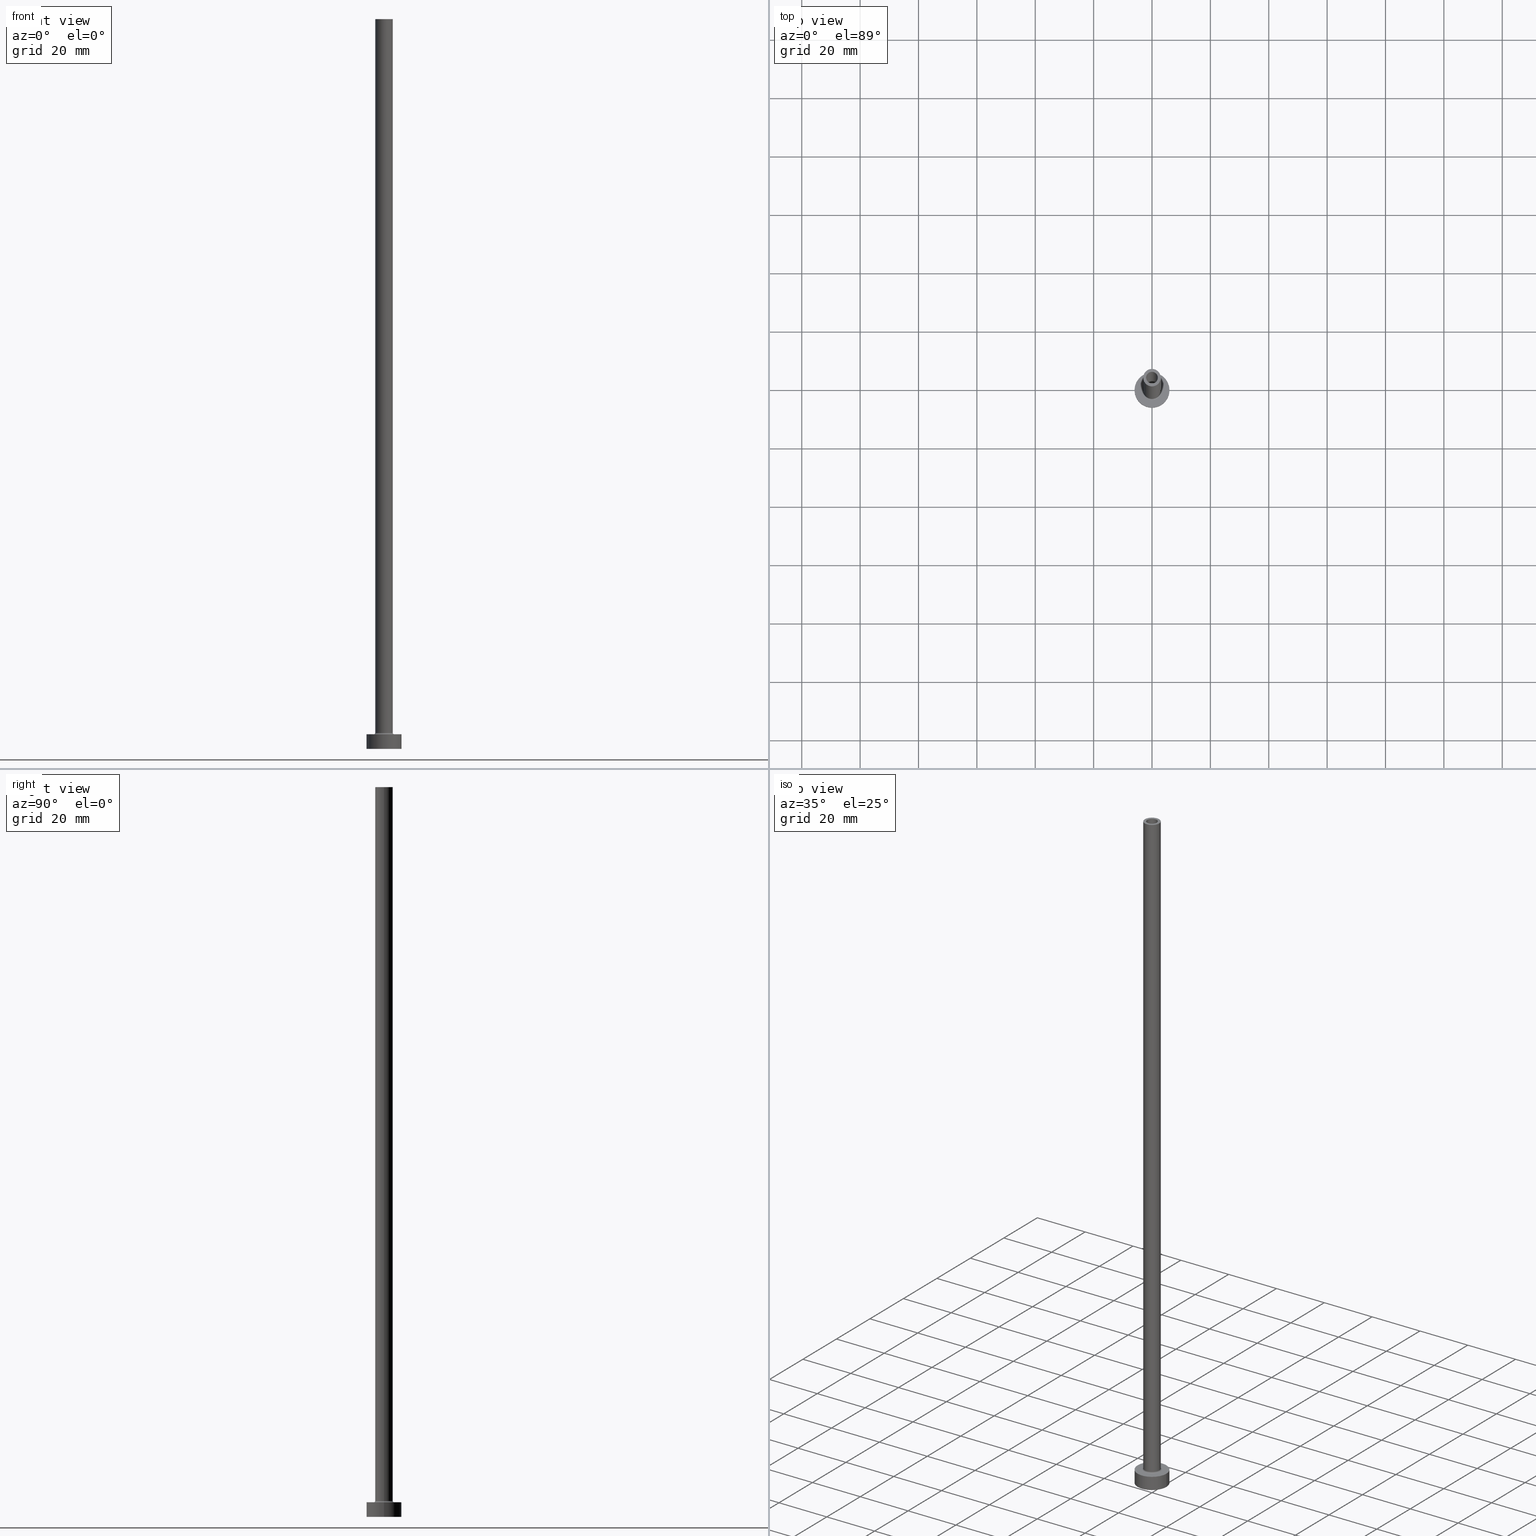
[diagram: canonical four-view strip — front | top / right | iso, engineering-drawing reading convention]
A machine part, canonical four-view strip (front | top / right | iso — engineering-drawing reading convention). The complete STEP part file that produces these views, byte-faithful:
ISO-10303-21;
HEADER;
FILE_DESCRIPTION (( 'STEP AP203' ),
    '1' );
FILE_NAME ('80ba.STEP',
    '2023-02-13T17:44:59',
    ( '' ),
    ( '' ),
    'SwSTEP 2.0',
    'SolidWorks 2019',
    '' );
FILE_SCHEMA (( 'CONFIG_CONTROL_DESIGN' ));
ENDSEC;

DATA;
#1 = CARTESIAN_POINT ( 'NONE',  ( 6.000000000000000888, 7.347880794884120722E-16, 5.000000000000000000 ) ) ;
#2 = EDGE_CURVE ( 'NONE', #150, #3, #417, .T. ) ;
#3 = VERTEX_POINT ( 'NONE', #58 ) ;
#4 = COORDINATED_UNIVERSAL_TIME_OFFSET ( 1, 0, .AHEAD. ) ;
#5 = CARTESIAN_POINT ( 'NONE',  ( 0.000000000000000000, 0.000000000000000000, 5.000000000000000000 ) ) ;
#6 = ORIENTED_EDGE ( 'NONE', *, *, #258, .F. ) ;
#7 = ORIENTED_EDGE ( 'NONE', *, *, #321, .F. ) ;
#8 = PRODUCT_DEFINITION_SHAPE ( 'NONE', 'NONE',  #207 ) ;
#9 = ORIENTED_EDGE ( 'NONE', *, *, #325, .F. ) ;
#10 = EDGE_CURVE ( 'NONE', #300, #332, #76, .T. ) ;
#11 = VECTOR ( 'NONE', #131, 1000.000000000000000 ) ;
#12 = CC_DESIGN_APPROVAL ( #293, ( #207 ) ) ;
#13 = CARTESIAN_POINT ( 'NONE',  ( 0.000000000000000000, 0.000000000000000000, 5.000000000000000000 ) ) ;
#14 = VERTEX_POINT ( 'NONE', #276 ) ;
#15 = DIRECTION ( 'NONE',  ( 0.000000000000000000, 0.000000000000000000, 1.000000000000000000 ) ) ;
#16 = ORIENTED_EDGE ( 'NONE', *, *, #325, .T. ) ;
#17 = ADVANCED_FACE ( 'NONE', ( #137, #306 ), #26, .T. ) ;
#18 = ORIENTED_EDGE ( 'NONE', *, *, #246, .T. ) ;
#19 = DIRECTION ( 'NONE',  ( 1.000000000000000000, 0.000000000000000000, 0.000000000000000000 ) ) ;
#20 = AXIS2_PLACEMENT_3D ( 'NONE', #144, #287, #438 ) ;
#21 = VERTEX_POINT ( 'NONE', #418 ) ;
#22 = DIRECTION ( 'NONE',  ( 0.000000000000000000, 0.000000000000000000, 1.000000000000000000 ) ) ;
#23 = DIRECTION ( 'NONE',  ( 0.000000000000000000, 0.000000000000000000, 1.000000000000000000 ) ) ;
#24 = ADVANCED_FACE ( 'NONE', ( #93 ), #90, .F. ) ;
#25 = CARTESIAN_POINT ( 'NONE',  ( 0.000000000000000000, 0.000000000000000000, 0.000000000000000000 ) ) ;
#26 = PLANE ( 'NONE',  #366 ) ;
#27 = ORIENTED_EDGE ( 'NONE', *, *, #242, .T. ) ;
#28 = APPLICATION_PROTOCOL_DEFINITION ( 'international standard', 'config_control_design', 1994, #299 ) ;
#29 = ADVANCED_FACE ( 'NONE', ( #171, #234 ), #308, .F. ) ;
#30 = PERSON_AND_ORGANIZATION ( #39, #167 ) ;
#31 = UNCERTAINTY_MEASURE_WITH_UNIT (LENGTH_MEASURE( 1.000000000000000082E-05 ), #243, 'distance_accuracy_value', 'NONE');
#32 = ORIENTED_EDGE ( 'NONE', *, *, #2, .F. ) ;
#33 = DATE_AND_TIME ( #136, #397 ) ;
#34 = CIRCLE ( 'NONE', #53, 6.000000000000000888 ) ;
#35 = APPROVAL_PERSON_ORGANIZATION ( #343, #293, #139 ) ;
#36 = DIRECTION ( 'NONE',  ( 0.000000000000000000, 0.000000000000000000, 1.000000000000000000 ) ) ;
#37 = EDGE_CURVE ( 'NONE', #356, #254, #405, .T. ) ;
#38 = DIRECTION ( 'NONE',  ( -1.000000000000000000, 0.000000000000000000, 0.000000000000000000 ) ) ;
#39 = PERSON ( 'NEUR�EN�', 'NEUR�EN�', 'NEUR�EN�', ('NEUR�EN�'), ('NEUR�EN�'), ('NEUR�EN�') ) ;
#40 = DIRECTION ( 'NONE',  ( 0.000000000000000000, 0.000000000000000000, 1.000000000000000000 ) ) ;
#41 = EDGE_LOOP ( 'NONE', ( #186, #32 ) ) ;
#42 = ORIENTED_EDGE ( 'NONE', *, *, #10, .F. ) ;
#43 = ADVANCED_FACE ( 'NONE', ( #341 ), #342, .T. ) ;
#44 = DIRECTION ( 'NONE',  ( 0.000000000000000000, 0.000000000000000000, -1.000000000000000000 ) ) ;
#45 = VERTEX_POINT ( 'NONE', #64 ) ;
#46 = DIRECTION ( 'NONE',  ( -0.000000000000000000, -0.000000000000000000, -1.000000000000000000 ) ) ;
#47 = ADVANCED_FACE ( 'NONE', ( #166 ), #377, .F. ) ;
#48 = FACE_OUTER_BOUND ( 'NONE', #71, .T. ) ;
#49 = ORIENTED_EDGE ( 'NONE', *, *, #315, .F. ) ;
#50 = CARTESIAN_POINT ( 'NONE',  ( 0.000000000000000000, 0.000000000000000000, 250.0000000000000000 ) ) ;
#51 = AXIS2_PLACEMENT_3D ( 'NONE', #367, #271, #133 ) ;
#52 = DIRECTION ( 'NONE',  ( -0.000000000000000000, -0.000000000000000000, -1.000000000000000000 ) ) ;
#53 = AXIS2_PLACEMENT_3D ( 'NONE', #263, #372, #260 ) ;
#54 = ADVANCED_FACE ( 'NONE', ( #173 ), #456, .T. ) ;
#55 = DIRECTION ( 'NONE',  ( 0.000000000000000000, 0.000000000000000000, -1.000000000000000000 ) ) ;
#56 = DIRECTION ( 'NONE',  ( 0.000000000000000000, 0.000000000000000000, 1.000000000000000000 ) ) ;
#57 = FACE_OUTER_BOUND ( 'NONE', #402, .T. ) ;
#58 = CARTESIAN_POINT ( 'NONE',  ( -2.149999999999999911, 0.000000000000000000, 205.0000000000000284 ) ) ;
#59 = VECTOR ( 'NONE', #89, 1000.000000000000000 ) ;
#60 = ADVANCED_FACE ( 'NONE', ( #163, #106 ), #222, .T. ) ;
#61 = DIRECTION ( 'NONE',  ( -1.000000000000000000, 0.000000000000000000, 0.000000000000000000 ) ) ;
#62 = PERSON_AND_ORGANIZATION_ROLE ( 'design_owner' ) ;
#63 = PERSON_AND_ORGANIZATION ( #39, #167 ) ;
#64 = CARTESIAN_POINT ( 'NONE',  ( -3.500000000000000444, 4.286263797015737088E-16, 5.000000000000002665 ) ) ;
#65 = APPROVAL_STATUS ( 'not_yet_approved' ) ;
#66 = AXIS2_PLACEMENT_3D ( 'NONE', #324, #256, #396 ) ;
#67 = LOCAL_TIME ( 18, 44, 59.00000000000000000, #4 ) ;
#68 = DIRECTION ( 'NONE',  ( 0.000000000000000000, -1.000000000000000000, 0.000000000000000000 ) ) ;
#69 = EDGE_CURVE ( 'NONE', #300, #266, #124, .T. ) ;
#70 = DIRECTION ( 'NONE',  ( 1.000000000000000000, 0.000000000000000000, 0.000000000000000000 ) ) ;
#71 = EDGE_LOOP ( 'NONE', ( #432, #119, #423, #329 ) ) ;
#72 = ORIENTED_EDGE ( 'NONE', *, *, #225, .F. ) ;
#73 = VECTOR ( 'NONE', #425, 1000.000000000000000 ) ;
#74 = CIRCLE ( 'NONE', #99, 3.000000000000000444 ) ;
#75 = EDGE_CURVE ( 'NONE', #273, #21, #444, .T. ) ;
#76 = CIRCLE ( 'NONE', #440, 3.000000000000000444 ) ;
#77 = ORIENTED_EDGE ( 'NONE', *, *, #258, .T. ) ;
#78 = MANIFOLD_SOLID_BREP ( 'Odebrat vysunut�m4', #157 ) ;
#79 = EDGE_LOOP ( 'NONE', ( #447, #198 ) ) ;
#80 = CYLINDRICAL_SURFACE ( 'NONE', #66, 2.149999999999999911 ) ;
#81 = DIRECTION ( 'NONE',  ( 0.000000000000000000, 0.000000000000000000, 1.000000000000000000 ) ) ;
#82 = LINE ( 'NONE', #224, #354 ) ;
#83 = ORIENTED_EDGE ( 'NONE', *, *, #352, .F. ) ;
#84 = CARTESIAN_POINT ( 'NONE',  ( 0.000000000000000000, 0.000000000000000000, 5.000000000000000000 ) ) ;
#85 = ORIENTED_EDGE ( 'NONE', *, *, #120, .T. ) ;
#86 = DIRECTION ( 'NONE',  ( 0.000000000000000000, 0.000000000000000000, 1.000000000000000000 ) ) ;
#87 = ORIENTED_EDGE ( 'NONE', *, *, #75, .F. ) ;
#88 = CIRCLE ( 'NONE', #311, 6.000000000000000888 ) ;
#89 = DIRECTION ( 'NONE',  ( 0.000000000000000000, 0.000000000000000000, -1.000000000000000000 ) ) ;
#90 = CYLINDRICAL_SURFACE ( 'NONE', #238, 2.000000000000000000 ) ;
#91 = ORIENTED_EDGE ( 'NONE', *, *, #302, .F. ) ;
#92 = LINE ( 'NONE', #297, #457 ) ;
#93 = FACE_OUTER_BOUND ( 'NONE', #226, .T. ) ;
#94 = CARTESIAN_POINT ( 'NONE',  ( 2.149999999999999911, 2.632990618166809235E-16, 211.0811183182043180 ) ) ;
#95 = EDGE_CURVE ( 'NONE', #147, #239, #146, .T. ) ;
#96 = DIRECTION ( 'NONE',  ( 0.000000000000000000, 0.000000000000000000, -1.000000000000000000 ) ) ;
#97 = ORIENTED_EDGE ( 'NONE', *, *, #442, .F. ) ;
#98 = CIRCLE ( 'NONE', #116, 0.4999999999999995559 ) ;
#99 = AXIS2_PLACEMENT_3D ( 'NONE', #156, #262, #286 ) ;
#100 =( NAMED_UNIT ( * ) PLANE_ANGLE_UNIT ( ) SI_UNIT ( $, .RADIAN. ) );
#101 = VECTOR ( 'NONE', #460, 1000.000000000000000 ) ;
#102 = CARTESIAN_POINT ( 'NONE',  ( 0.000000000000000000, 0.000000000000000000, 0.000000000000000000 ) ) ;
#103 = PERSON_AND_ORGANIZATION_ROLE ( 'design_supplier' ) ;
#104 = DIRECTION ( 'NONE',  ( 0.000000000000000000, 0.000000000000000000, 1.000000000000000000 ) ) ;
#105 = ORIENTED_EDGE ( 'NONE', *, *, #148, .T. ) ;
#106 = FACE_OUTER_BOUND ( 'NONE', #79, .T. ) ;
#107 = ORIENTED_EDGE ( 'NONE', *, *, #442, .T. ) ;
#108 = LOCAL_TIME ( 18, 44, 59.00000000000000000, #237 ) ;
#109 = CARTESIAN_POINT ( 'NONE',  ( 3.000000000000000444, 3.673940397442060361E-16, 250.0000000000000000 ) ) ;
#110 = VERTEX_POINT ( 'NONE', #109 ) ;
#111 = ADVANCED_BREP_SHAPE_REPRESENTATION ( '80ba', ( #78, #359 ), #382 ) ;
#112 = CARTESIAN_POINT ( 'NONE',  ( 0.000000000000000000, 0.000000000000000000, 5.000000000000000000 ) ) ;
#113 = EDGE_LOOP ( 'NONE', ( #72, #42, #135, #428 ) ) ;
#114 = CC_DESIGN_PERSON_AND_ORGANIZATION_ASSIGNMENT ( #170, #307, ( #207 ) ) ;
#115 = EDGE_LOOP ( 'NONE', ( #91, #154, #129, #9 ) ) ;
#116 = AXIS2_PLACEMENT_3D ( 'NONE', #152, #178, #121 ) ;
#117 = ORIENTED_EDGE ( 'NONE', *, *, #321, .T. ) ;
#118 = CIRCLE ( 'NONE', #345, 3.500000000000000444 ) ;
#119 = ORIENTED_EDGE ( 'NONE', *, *, #225, .T. ) ;
#120 = EDGE_CURVE ( 'NONE', #388, #110, #331, .T. ) ;
#121 = DIRECTION ( 'NONE',  ( -1.000000000000000000, 1.224646799147354440E-16, 0.000000000000000000 ) ) ;
#122 = ORIENTED_EDGE ( 'NONE', *, *, #159, .T. ) ;
#123 = FACE_OUTER_BOUND ( 'NONE', #249, .T. ) ;
#124 = CIRCLE ( 'NONE', #433, 0.5000000000000004441 ) ;
#125 = CYLINDRICAL_SURFACE ( 'NONE', #322, 2.149999999999999911 ) ;
#126 = ORIENTED_EDGE ( 'NONE', *, *, #365, .F. ) ;
#127 = LINE ( 'NONE', #94, #455 ) ;
#128 = CC_DESIGN_PERSON_AND_ORGANIZATION_ASSIGNMENT ( #30, #172, ( #291 ) ) ;
#129 = ORIENTED_EDGE ( 'NONE', *, *, #181, .T. ) ;
#130 = CARTESIAN_POINT ( 'NONE',  ( -3.000000000000000444, 0.000000000000000000, 250.0000000000000000 ) ) ;
#131 = DIRECTION ( 'NONE',  ( -0.000000000000000000, -0.000000000000000000, -1.000000000000000000 ) ) ;
#132 = CARTESIAN_POINT ( 'NONE',  ( 0.000000000000000000, 0.000000000000000000, 250.0000000000000000 ) ) ;
#133 = DIRECTION ( 'NONE',  ( 1.000000000000000000, 0.000000000000000000, 0.000000000000000000 ) ) ;
#134 = CARTESIAN_POINT ( 'NONE',  ( 0.000000000000000000, 0.000000000000000000, 250.0000000000000000 ) ) ;
#135 = ORIENTED_EDGE ( 'NONE', *, *, #69, .T. ) ;
#136 = CALENDAR_DATE ( 2023, 13, 2 ) ;
#137 = FACE_BOUND ( 'NONE', #413, .T. ) ;
#138 = CIRCLE ( 'NONE', #240, 3.500000000000000444 ) ;
#139 = APPROVAL_ROLE ( '' ) ;
#140 = AXIS2_PLACEMENT_3D ( 'NONE', #221, #318, #357 ) ;
#141 = DIRECTION ( 'NONE',  ( -0.000000000000000000, -0.000000000000000000, -1.000000000000000000 ) ) ;
#142 = CC_DESIGN_PERSON_AND_ORGANIZATION_ASSIGNMENT ( #414, #103, ( #231 ) ) ;
#143 = CARTESIAN_POINT ( 'NONE',  ( 3.500000000000000444, 0.000000000000000000, 5.500000000000005329 ) ) ;
#144 = CARTESIAN_POINT ( 'NONE',  ( 0.000000000000000000, 0.000000000000000000, 0.000000000000000000 ) ) ;
#145 = DATE_AND_TIME ( #384, #441 ) ;
#146 = LINE ( 'NONE', #393, #73 ) ;
#147 = VERTEX_POINT ( 'NONE', #1 ) ;
#148 = EDGE_CURVE ( 'NONE', #21, #273, #368, .T. ) ;
#149 = ORIENTED_EDGE ( 'NONE', *, *, #165, .T. ) ;
#150 = VERTEX_POINT ( 'NONE', #381 ) ;
#151 = AXIS2_PLACEMENT_3D ( 'NONE', #25, #168, #298 ) ;
#152 = CARTESIAN_POINT ( 'NONE',  ( -3.500000000000000444, 4.286263797015737088E-16, 5.500000000000005329 ) ) ;
#153 = ADVANCED_FACE ( 'NONE', ( #294 ), #80, .F. ) ;
#154 = ORIENTED_EDGE ( 'NONE', *, *, #95, .T. ) ;
#155 = CARTESIAN_POINT ( 'NONE',  ( 0.000000000000000000, 0.000000000000000000, 205.0000000000000284 ) ) ;
#156 = CARTESIAN_POINT ( 'NONE',  ( 0.000000000000000000, 0.000000000000000000, 250.0000000000000000 ) ) ;
#157 = CLOSED_SHELL ( 'NONE', ( #373, #339, #436, #43, #54, #220, #60, #29, #213, #17, #47, #153, #275, #24 ) ) ;
#158 = CIRCLE ( 'NONE', #140, 2.149999999999999911 ) ;
#159 = EDGE_CURVE ( 'NONE', #266, #45, #138, .T. ) ;
#160 = CARTESIAN_POINT ( 'NONE',  ( 0.000000000000000000, 0.000000000000000000, 5.000000000000000000 ) ) ;
#161 = EDGE_LOOP ( 'NONE', ( #270, #105 ) ) ;
#162 = CARTESIAN_POINT ( 'NONE',  ( 0.000000000000000000, 0.000000000000000000, 0.000000000000000000 ) ) ;
#163 = FACE_BOUND ( 'NONE', #188, .T. ) ;
#164 = DIRECTION ( 'NONE',  ( 1.000000000000000000, 0.000000000000000000, -0.000000000000000000 ) ) ;
#165 = EDGE_CURVE ( 'NONE', #3, #150, #158, .T. ) ;
#166 = FACE_OUTER_BOUND ( 'NONE', #113, .T. ) ;
#167 = ORGANIZATION ( 'NEUR�EN�', 'NEUR�EN�', '' ) ;
#168 = DIRECTION ( 'NONE',  ( -0.000000000000000000, -0.000000000000000000, -1.000000000000000000 ) ) ;
#169 = EDGE_LOOP ( 'NONE', ( #85, #107 ) ) ;
#170 = PERSON_AND_ORGANIZATION ( #39, #167 ) ;
#171 = FACE_BOUND ( 'NONE', #399, .T. ) ;
#172 = PERSON_AND_ORGANIZATION_ROLE ( 'classification_officer' ) ;
#173 = FACE_OUTER_BOUND ( 'NONE', #115, .T. ) ;
#174 =( NAMED_UNIT ( * ) SI_UNIT ( $, .STERADIAN. ) SOLID_ANGLE_UNIT ( ) );
#175 = AXIS2_PLACEMENT_3D ( 'NONE', #292, #81, #244 ) ;
#176 = DIRECTION ( 'NONE',  ( 0.000000000000000000, 0.000000000000000000, 1.000000000000000000 ) ) ;
#177 = APPROVAL_ROLE ( '' ) ;
#178 = DIRECTION ( 'NONE',  ( 1.224646799147353207E-16, 1.000000000000000000, -0.000000000000000000 ) ) ;
#179 = DATE_AND_TIME ( #424, #265 ) ;
#180 = DIRECTION ( 'NONE',  ( 1.000000000000000000, 0.000000000000000000, 0.000000000000000000 ) ) ;
#181 = EDGE_CURVE ( 'NONE', #239, #14, #230, .T. ) ;
#182 = PRODUCT ( '80ba', '80ba', '', ( #375 ) ) ;
#183 = APPROVAL_DATE_TIME ( #392, #347 ) ;
#184 = AXIS2_PLACEMENT_3D ( 'NONE', #13, #176, #189 ) ;
#185 = ORIENTED_EDGE ( 'NONE', *, *, #242, .F. ) ;
#186 = ORIENTED_EDGE ( 'NONE', *, *, #165, .F. ) ;
#187 = DIRECTION ( 'NONE',  ( 0.000000000000000000, 0.000000000000000000, 1.000000000000000000 ) ) ;
#188 = EDGE_LOOP ( 'NONE', ( #122, #394 ) ) ;
#189 = DIRECTION ( 'NONE',  ( 1.000000000000000000, 0.000000000000000000, -0.000000000000000000 ) ) ;
#190 = CARTESIAN_POINT ( 'NONE',  ( -3.000000000000000444, 0.000000000000000000, 5.500000000000005329 ) ) ;
#191 = EDGE_LOOP ( 'NONE', ( #411, #245, #18, #117 ) ) ;
#192 = DIRECTION ( 'NONE',  ( 1.000000000000000000, 0.000000000000000000, 0.000000000000000000 ) ) ;
#193 = CIRCLE ( 'NONE', #419, 3.000000000000000444 ) ;
#194 = TOROIDAL_SURFACE ( 'NONE', #435, 3.500000000000000444, 0.5000000000000000000 ) ;
#195 = ORIENTED_EDGE ( 'NONE', *, *, #253, .T. ) ;
#196 = CIRCLE ( 'NONE', #51, 6.000000000000000888 ) ;
#197 = DIRECTION ( 'NONE',  ( -0.000000000000000000, -0.000000000000000000, -1.000000000000000000 ) ) ;
#198 = ORIENTED_EDGE ( 'NONE', *, *, #302, .T. ) ;
#199 = CARTESIAN_POINT ( 'NONE',  ( 2.149999999999999911, 2.632990618166809235E-16, 0.000000000000000000 ) ) ;
#200 = EDGE_LOOP ( 'NONE', ( #257, #126, #16, #404 ) ) ;
#201 = DIRECTION ( 'NONE',  ( 0.000000000000000000, 0.000000000000000000, -1.000000000000000000 ) ) ;
#202 = DIRECTION ( 'NONE',  ( 1.000000000000000000, 0.000000000000000000, 0.000000000000000000 ) ) ;
#203 = DIRECTION ( 'NONE',  ( 0.000000000000000000, 0.000000000000000000, 1.000000000000000000 ) ) ;
#204 = DIRECTION ( 'NONE',  ( 1.000000000000000000, 0.000000000000000000, 0.000000000000000000 ) ) ;
#205 = COORDINATED_UNIVERSAL_TIME_OFFSET ( 1, 0, .AHEAD. ) ;
#206 = DIRECTION ( 'NONE',  ( 1.000000000000000000, 0.000000000000000000, -0.000000000000000000 ) ) ;
#207 = PRODUCT_DEFINITION ( 'NEZN�M�', '', #231, #459 ) ;
#208 = DIRECTION ( 'NONE',  ( 0.000000000000000000, 0.000000000000000000, 1.000000000000000000 ) ) ;
#209 = AXIS2_PLACEMENT_3D ( 'NONE', #336, #340, #378 ) ;
#210 = APPROVAL_ROLE ( '' ) ;
#211 = DIRECTION ( 'NONE',  ( -0.000000000000000000, -0.000000000000000000, -1.000000000000000000 ) ) ;
#212 = DIRECTION ( 'NONE',  ( 1.000000000000000000, 0.000000000000000000, 0.000000000000000000 ) ) ;
#213 = ADVANCED_FACE ( 'NONE', ( #123 ), #285, .T. ) ;
#214 = CARTESIAN_POINT ( 'NONE',  ( -2.000000000000000000, 0.000000000000000000, 250.0000000000000000 ) ) ;
#215 = ORIENTED_EDGE ( 'NONE', *, *, #429, .T. ) ;
#216 = CALENDAR_DATE ( 2023, 13, 2 ) ;
#217 = AXIS2_PLACEMENT_3D ( 'NONE', #50, #448, #400 ) ;
#218 = APPROVAL_PERSON_ORGANIZATION ( #63, #267, #210 ) ;
#219 = CIRCLE ( 'NONE', #415, 2.000000000000000000 ) ;
#220 = ADVANCED_FACE ( 'NONE', ( #426 ), #431, .T. ) ;
#221 = CARTESIAN_POINT ( 'NONE',  ( 0.000000000000000000, 0.000000000000000000, 205.0000000000000284 ) ) ;
#222 = PLANE ( 'NONE',  #184 ) ;
#223 = ORIENTED_EDGE ( 'NONE', *, *, #10, .T. ) ;
#224 = CARTESIAN_POINT ( 'NONE',  ( -2.149999999999999911, 0.000000000000000000, 211.0811183182043180 ) ) ;
#225 = EDGE_CURVE ( 'NONE', #332, #45, #98, .T. ) ;
#226 = EDGE_LOOP ( 'NONE', ( #326, #232, #439, #288 ) ) ;
#227 = FACE_OUTER_BOUND ( 'NONE', #361, .T. ) ;
#228 = ORIENTED_EDGE ( 'NONE', *, *, #315, .T. ) ;
#229 = DIRECTION ( 'NONE',  ( 1.000000000000000000, 0.000000000000000000, 0.000000000000000000 ) ) ;
#230 = CIRCLE ( 'NONE', #20, 6.000000000000000888 ) ;
#231 = PRODUCT_DEFINITION_FORMATION_WITH_SPECIFIED_SOURCE ( 'LIBOVOLN�', '', #182, .NOT_KNOWN. ) ;
#232 = ORIENTED_EDGE ( 'NONE', *, *, #37, .T. ) ;
#233 = CARTESIAN_POINT ( 'NONE',  ( 3.500000000000000444, 0.000000000000000000, 5.000000000000002665 ) ) ;
#234 = FACE_OUTER_BOUND ( 'NONE', #383, .T. ) ;
#235 = CC_DESIGN_DATE_AND_TIME_ASSIGNMENT ( #145, #284, ( #207 ) ) ;
#236 = CARTESIAN_POINT ( 'NONE',  ( 3.000000000000000444, 3.673940397442060361E-16, 5.500000000000005329 ) ) ;
#237 = COORDINATED_UNIVERSAL_TIME_OFFSET ( 1, 0, .AHEAD. ) ;
#238 = AXIS2_PLACEMENT_3D ( 'NONE', #132, #96, #61 ) ;
#239 = VERTEX_POINT ( 'NONE', #259 ) ;
#240 = AXIS2_PLACEMENT_3D ( 'NONE', #5, #211, #348 ) ;
#241 = CARTESIAN_POINT ( 'NONE',  ( 0.000000000000000000, 0.000000000000000000, 0.000000000000000000 ) ) ;
#242 = EDGE_CURVE ( 'NONE', #110, #300, #398, .T. ) ;
#243 =( LENGTH_UNIT ( ) NAMED_UNIT ( * ) SI_UNIT ( .MILLI., .METRE. ) );
#244 = DIRECTION ( 'NONE',  ( 1.000000000000000000, 0.000000000000000000, 0.000000000000000000 ) ) ;
#245 = ORIENTED_EDGE ( 'NONE', *, *, #2, .T. ) ;
#246 = EDGE_CURVE ( 'NONE', #3, #364, #82, .T. ) ;
#247 = APPROVAL_STATUS ( 'not_yet_approved' ) ;
#248 = DIRECTION ( 'NONE',  ( 0.000000000000000000, 0.000000000000000000, -1.000000000000000000 ) ) ;
#249 = EDGE_LOOP ( 'NONE', ( #185, #391, #228, #195 ) ) ;
#250 = ORIENTED_EDGE ( 'NONE', *, *, #289, .F. ) ;
#251 = AXIS2_PLACEMENT_3D ( 'NONE', #155, #187, #283 ) ;
#252 = AXIS2_PLACEMENT_3D ( 'NONE', #162, #197, #19 ) ;
#253 = EDGE_CURVE ( 'NONE', #332, #300, #193, .T. ) ;
#254 = VERTEX_POINT ( 'NONE', #214 ) ;
#255 = DIRECTION ( 'NONE',  ( -0.000000000000000000, -0.000000000000000000, -1.000000000000000000 ) ) ;
#256 = DIRECTION ( 'NONE',  ( 0.000000000000000000, 0.000000000000000000, -1.000000000000000000 ) ) ;
#257 = ORIENTED_EDGE ( 'NONE', *, *, #95, .F. ) ;
#258 = EDGE_CURVE ( 'NONE', #254, #356, #219, .T. ) ;
#259 = CARTESIAN_POINT ( 'NONE',  ( 6.000000000000000888, 7.347880794884120722E-16, 0.000000000000000000 ) ) ;
#260 = DIRECTION ( 'NONE',  ( 1.000000000000000000, 0.000000000000000000, 0.000000000000000000 ) ) ;
#261 = ORIENTED_EDGE ( 'NONE', *, *, #181, .F. ) ;
#262 = DIRECTION ( 'NONE',  ( 0.000000000000000000, 0.000000000000000000, 1.000000000000000000 ) ) ;
#263 = CARTESIAN_POINT ( 'NONE',  ( 0.000000000000000000, 0.000000000000000000, 0.000000000000000000 ) ) ;
#264 = CIRCLE ( 'NONE', #151, 2.149999999999999911 ) ;
#265 = LOCAL_TIME ( 18, 44, 59.00000000000000000, #349 ) ;
#266 = VERTEX_POINT ( 'NONE', #233 ) ;
#267 = APPROVAL ( #247, 'NEUR�EN�' ) ;
#268 = CARTESIAN_POINT ( 'NONE',  ( -6.000000000000000888, 0.000000000000000000, 5.000000000000000000 ) ) ;
#269 = CARTESIAN_POINT ( 'NONE',  ( 0.000000000000000000, 0.000000000000000000, 205.0000000000000284 ) ) ;
#270 = ORIENTED_EDGE ( 'NONE', *, *, #75, .T. ) ;
#271 = DIRECTION ( 'NONE',  ( 0.000000000000000000, 0.000000000000000000, 1.000000000000000000 ) ) ;
#272 = DIRECTION ( 'NONE',  ( 0.000000000000000000, 0.000000000000000000, 1.000000000000000000 ) ) ;
#273 = VERTEX_POINT ( 'NONE', #304 ) ;
#274 = APPLICATION_PROTOCOL_DEFINITION ( 'international standard', 'config_control_design', 1994, #422 ) ;
#275 = ADVANCED_FACE ( 'NONE', ( #370, #335 ), #328, .F. ) ;
#276 = CARTESIAN_POINT ( 'NONE',  ( -6.000000000000000888, 0.000000000000000000, 0.000000000000000000 ) ) ;
#277 = AXIS2_PLACEMENT_3D ( 'NONE', #371, #56, #202 ) ;
#278 = AXIS2_PLACEMENT_3D ( 'NONE', #269, #374, #407 ) ;
#279 = VECTOR ( 'NONE', #55, 1000.000000000000000 ) ;
#280 = PERSON_AND_ORGANIZATION_ROLE ( 'creator' ) ;
#281 = DIRECTION ( 'NONE',  ( 1.000000000000000000, 0.000000000000000000, 0.000000000000000000 ) ) ;
#282 = APPROVAL_DATE_TIME ( #33, #293 ) ;
#283 = DIRECTION ( 'NONE',  ( 1.000000000000000000, 0.000000000000000000, 0.000000000000000000 ) ) ;
#284 = DATE_TIME_ROLE ( 'creation_date' ) ;
#285 = CYLINDRICAL_SURFACE ( 'NONE', #296, 3.000000000000000444 ) ;
#286 = DIRECTION ( 'NONE',  ( 1.000000000000000000, 0.000000000000000000, 0.000000000000000000 ) ) ;
#287 = DIRECTION ( 'NONE',  ( 0.000000000000000000, 0.000000000000000000, 1.000000000000000000 ) ) ;
#288 = ORIENTED_EDGE ( 'NONE', *, *, #148, .F. ) ;
#289 = EDGE_CURVE ( 'NONE', #254, #273, #451, .T. ) ;
#290 = AXIS2_PLACEMENT_3D ( 'NONE', #303, #141, #344 ) ;
#291 = SECURITY_CLASSIFICATION ( '', '', #312 ) ;
#292 = CARTESIAN_POINT ( 'NONE',  ( 0.000000000000000000, 0.000000000000000000, 250.0000000000000000 ) ) ;
#293 = APPROVAL ( #65, 'NEUR�EN�' ) ;
#294 = FACE_OUTER_BOUND ( 'NONE', #191, .T. ) ;
#295 = VERTEX_POINT ( 'NONE', #199 ) ;
#296 = AXIS2_PLACEMENT_3D ( 'NONE', #437, #46, #38 ) ;
#297 = CARTESIAN_POINT ( 'NONE',  ( -3.000000000000000444, 0.000000000000000000, 250.0000000000000000 ) ) ;
#298 = DIRECTION ( 'NONE',  ( 1.000000000000000000, 0.000000000000000000, 0.000000000000000000 ) ) ;
#299 = APPLICATION_CONTEXT ( 'configuration controlled 3d designs of mechanical parts and assemblies' ) ;
#300 = VERTEX_POINT ( 'NONE', #236 ) ;
#301 = DIRECTION ( 'NONE',  ( -1.000000000000000000, 0.000000000000000000, 0.000000000000000000 ) ) ;
#302 = EDGE_CURVE ( 'NONE', #147, #445, #196, .T. ) ;
#303 = CARTESIAN_POINT ( 'NONE',  ( 0.000000000000000000, 0.000000000000000000, 5.000000000000000000 ) ) ;
#304 = CARTESIAN_POINT ( 'NONE',  ( -2.000000000000000000, 0.000000000000000000, 205.0000000000000284 ) ) ;
#305 = DIRECTION ( 'NONE',  ( 1.000000000000000000, 0.000000000000000000, 0.000000000000000000 ) ) ;
#306 = FACE_OUTER_BOUND ( 'NONE', #169, .T. ) ;
#307 = PERSON_AND_ORGANIZATION_ROLE ( 'creator' ) ;
#308 = PLANE ( 'NONE',  #390 ) ;
#309 = CALENDAR_DATE ( 2023, 13, 2 ) ;
#310 = AXIS2_PLACEMENT_3D ( 'NONE', #112, #255, #313 ) ;
#311 = AXIS2_PLACEMENT_3D ( 'NONE', #160, #22, #305 ) ;
#312 = SECURITY_CLASSIFICATION_LEVEL ( 'unclassified' ) ;
#313 = DIRECTION ( 'NONE',  ( -1.000000000000000000, 0.000000000000000000, 0.000000000000000000 ) ) ;
#314 = COORDINATED_UNIVERSAL_TIME_OFFSET ( 1, 0, .AHEAD. ) ;
#315 = EDGE_CURVE ( 'NONE', #388, #332, #92, .T. ) ;
#316 = CARTESIAN_POINT ( 'NONE',  ( 3.000000000000000444, 3.673940397442060361E-16, 250.0000000000000000 ) ) ;
#317 = PERSON_AND_ORGANIZATION ( #39, #167 ) ;
#318 = DIRECTION ( 'NONE',  ( 0.000000000000000000, 0.000000000000000000, 1.000000000000000000 ) ) ;
#319 = AXIS2_PLACEMENT_3D ( 'NONE', #410, #208, #281 ) ;
#320 = ORIENTED_EDGE ( 'NONE', *, *, #408, .T. ) ;
#321 = EDGE_CURVE ( 'NONE', #364, #295, #353, .T. ) ;
#322 = AXIS2_PLACEMENT_3D ( 'NONE', #443, #201, #301 ) ;
#323 = APPROVAL_PERSON_ORGANIZATION ( #458, #347, #177 ) ;
#324 = CARTESIAN_POINT ( 'NONE',  ( 0.000000000000000000, 0.000000000000000000, 211.0811183182043180 ) ) ;
#325 = EDGE_CURVE ( 'NONE', #445, #14, #449, .T. ) ;
#326 = ORIENTED_EDGE ( 'NONE', *, *, #408, .F. ) ;
#327 = CARTESIAN_POINT ( 'NONE',  ( 0.000000000000000000, 0.000000000000000000, 205.0000000000000284 ) ) ;
#328 = PLANE ( 'NONE',  #454 ) ;
#329 = ORIENTED_EDGE ( 'NONE', *, *, #69, .F. ) ;
#330 = LINE ( 'NONE', #406, #59 ) ;
#331 = CIRCLE ( 'NONE', #175, 3.000000000000000444 ) ;
#332 = VERTEX_POINT ( 'NONE', #190 ) ;
#333 = PRODUCT_RELATED_PRODUCT_CATEGORY ( 'detail', '', ( #182 ) ) ;
#334 = CARTESIAN_POINT ( 'NONE',  ( 2.000000000000000000, 2.449293598294705921E-16, 250.0000000000000000 ) ) ;
#335 = FACE_OUTER_BOUND ( 'NONE', #41, .T. ) ;
#336 = CARTESIAN_POINT ( 'NONE',  ( 0.000000000000000000, 0.000000000000000000, 250.0000000000000000 ) ) ;
#337 = CYLINDRICAL_SURFACE ( 'NONE', #217, 2.000000000000000000 ) ;
#338 = CC_DESIGN_APPROVAL ( #347, ( #291 ) ) ;
#339 = ADVANCED_FACE ( 'NONE', ( #227 ), #125, .F. ) ;
#340 = DIRECTION ( 'NONE',  ( -0.000000000000000000, -0.000000000000000000, -1.000000000000000000 ) ) ;
#341 = FACE_OUTER_BOUND ( 'NONE', #369, .T. ) ;
#342 = CYLINDRICAL_SURFACE ( 'NONE', #209, 3.000000000000000444 ) ;
#343 = PERSON_AND_ORGANIZATION ( #39, #167 ) ;
#344 = DIRECTION ( 'NONE',  ( -1.000000000000000000, 0.000000000000000000, 0.000000000000000000 ) ) ;
#345 = AXIS2_PLACEMENT_3D ( 'NONE', #84, #412, #192 ) ;
#346 = APPROVAL_STATUS ( 'not_yet_approved' ) ;
#347 = APPROVAL ( #346, 'NEUR�EN�' ) ;
#348 = DIRECTION ( 'NONE',  ( 1.000000000000000000, 0.000000000000000000, 0.000000000000000000 ) ) ;
#349 = COORDINATED_UNIVERSAL_TIME_OFFSET ( 1, 0, .AHEAD. ) ;
#350 = CARTESIAN_POINT ( 'NONE',  ( 0.000000000000000000, 0.000000000000000000, 250.0000000000000000 ) ) ;
#351 = ORIENTED_EDGE ( 'NONE', *, *, #395, .F. ) ;
#352 = EDGE_CURVE ( 'NONE', #14, #239, #34, .T. ) ;
#353 = CIRCLE ( 'NONE', #252, 2.149999999999999911 ) ;
#354 = VECTOR ( 'NONE', #248, 1000.000000000000000 ) ;
#355 = SHAPE_DEFINITION_REPRESENTATION ( #8, #111 ) ;
#356 = VERTEX_POINT ( 'NONE', #334 ) ;
#357 = DIRECTION ( 'NONE',  ( 1.000000000000000000, 0.000000000000000000, 0.000000000000000000 ) ) ;
#358 = ORIENTED_EDGE ( 'NONE', *, *, #395, .T. ) ;
#359 = AXIS2_PLACEMENT_3D ( 'NONE', #241, #203, #212 ) ;
#360 = DIRECTION ( 'NONE',  ( 1.000000000000000000, 0.000000000000000000, 0.000000000000000000 ) ) ;
#361 = EDGE_LOOP ( 'NONE', ( #149, #215, #358, #434 ) ) ;
#362 = DIRECTION ( 'NONE',  ( 0.000000000000000000, 0.000000000000000000, -1.000000000000000000 ) ) ;
#363 = CARTESIAN_POINT ( 'NONE',  ( -2.149999999999999911, 0.000000000000000000, 0.000000000000000000 ) ) ;
#364 = VERTEX_POINT ( 'NONE', #363 ) ;
#365 = EDGE_CURVE ( 'NONE', #445, #147, #88, .T. ) ;
#366 = AXIS2_PLACEMENT_3D ( 'NONE', #134, #272, #206 ) ;
#367 = CARTESIAN_POINT ( 'NONE',  ( 0.000000000000000000, 0.000000000000000000, 5.000000000000000000 ) ) ;
#368 = CIRCLE ( 'NONE', #251, 2.000000000000000000 ) ;
#369 = EDGE_LOOP ( 'NONE', ( #97, #27, #223, #49 ) ) ;
#370 = FACE_BOUND ( 'NONE', #161, .T. ) ;
#371 = CARTESIAN_POINT ( 'NONE',  ( 0.000000000000000000, 0.000000000000000000, 250.0000000000000000 ) ) ;
#372 = DIRECTION ( 'NONE',  ( 0.000000000000000000, 0.000000000000000000, 1.000000000000000000 ) ) ;
#373 = ADVANCED_FACE ( 'NONE', ( #57 ), #337, .F. ) ;
#374 = DIRECTION ( 'NONE',  ( 0.000000000000000000, 0.000000000000000000, 1.000000000000000000 ) ) ;
#375 = MECHANICAL_CONTEXT ( 'NONE', #299, 'mechanical' ) ;
#376 = CARTESIAN_POINT ( 'NONE',  ( 0.000000000000000000, 0.000000000000000000, 5.500000000000005329 ) ) ;
#377 = TOROIDAL_SURFACE ( 'NONE', #319, 3.500000000000000444, 0.5000000000000000000 ) ;
#378 = DIRECTION ( 'NONE',  ( -1.000000000000000000, 0.000000000000000000, 0.000000000000000000 ) ) ;
#379 = PERSON_AND_ORGANIZATION ( #39, #167 ) ;
#380 = DIRECTION ( 'NONE',  ( 1.000000000000000000, 0.000000000000000000, -0.000000000000000000 ) ) ;
#381 = CARTESIAN_POINT ( 'NONE',  ( 2.149999999999999911, 2.632990618166809235E-16, 205.0000000000000284 ) ) ;
#382 =( GEOMETRIC_REPRESENTATION_CONTEXT ( 3 ) GLOBAL_UNCERTAINTY_ASSIGNED_CONTEXT ( ( #31 ) ) GLOBAL_UNIT_ASSIGNED_CONTEXT ( ( #243, #100, #174 ) ) REPRESENTATION_CONTEXT ( 'NONE', 'WORKASPACE' ) );
#383 = EDGE_LOOP ( 'NONE', ( #83, #261 ) ) ;
#384 = CALENDAR_DATE ( 2023, 13, 2 ) ;
#385 = CARTESIAN_POINT ( 'NONE',  ( 0.000000000000000000, 0.000000000000000000, 5.500000000000005329 ) ) ;
#386 = ORIENTED_EDGE ( 'NONE', *, *, #37, .F. ) ;
#387 = EDGE_CURVE ( 'NONE', #45, #266, #118, .T. ) ;
#388 = VERTEX_POINT ( 'NONE', #130 ) ;
#389 = AXIS2_PLACEMENT_3D ( 'NONE', #327, #15, #360 ) ;
#390 = AXIS2_PLACEMENT_3D ( 'NONE', #102, #104, #380 ) ;
#391 = ORIENTED_EDGE ( 'NONE', *, *, #120, .F. ) ;
#392 = DATE_AND_TIME ( #216, #108 ) ;
#393 = CARTESIAN_POINT ( 'NONE',  ( 6.000000000000000888, 7.347880794884120722E-16, 5.000000000000000000 ) ) ;
#394 = ORIENTED_EDGE ( 'NONE', *, *, #387, .T. ) ;
#395 = EDGE_CURVE ( 'NONE', #295, #364, #264, .T. ) ;
#396 = DIRECTION ( 'NONE',  ( -1.000000000000000000, 0.000000000000000000, 0.000000000000000000 ) ) ;
#397 = LOCAL_TIME ( 18, 44, 59.00000000000000000, #205 ) ;
#398 = LINE ( 'NONE', #316, #101 ) ;
#399 = EDGE_LOOP ( 'NONE', ( #7, #351 ) ) ;
#400 = DIRECTION ( 'NONE',  ( -1.000000000000000000, 0.000000000000000000, 0.000000000000000000 ) ) ;
#401 = CC_DESIGN_PERSON_AND_ORGANIZATION_ASSIGNMENT ( #379, #62, ( #182 ) ) ;
#402 = EDGE_LOOP ( 'NONE', ( #77, #320, #87, #250 ) ) ;
#403 = CARTESIAN_POINT ( 'NONE',  ( 0.000000000000000000, 0.000000000000000000, 5.500000000000005329 ) ) ;
#404 = ORIENTED_EDGE ( 'NONE', *, *, #352, .T. ) ;
#405 = CIRCLE ( 'NONE', #277, 2.000000000000000000 ) ;
#406 = CARTESIAN_POINT ( 'NONE',  ( 2.000000000000000000, 2.449293598294705921E-16, 250.0000000000000000 ) ) ;
#407 = DIRECTION ( 'NONE',  ( 1.000000000000000000, 0.000000000000000000, 0.000000000000000000 ) ) ;
#408 = EDGE_CURVE ( 'NONE', #356, #21, #330, .T. ) ;
#409 = CARTESIAN_POINT ( 'NONE',  ( 0.000000000000000000, 0.000000000000000000, 205.0000000000000284 ) ) ;
#410 = CARTESIAN_POINT ( 'NONE',  ( 0.000000000000000000, 0.000000000000000000, 5.500000000000005329 ) ) ;
#411 = ORIENTED_EDGE ( 'NONE', *, *, #429, .F. ) ;
#412 = DIRECTION ( 'NONE',  ( -0.000000000000000000, -0.000000000000000000, -1.000000000000000000 ) ) ;
#413 = EDGE_LOOP ( 'NONE', ( #6, #386 ) ) ;
#414 = PERSON_AND_ORGANIZATION ( #39, #167 ) ;
#415 = AXIS2_PLACEMENT_3D ( 'NONE', #350, #40, #180 ) ;
#416 = CC_DESIGN_APPROVAL ( #267, ( #231 ) ) ;
#417 = CIRCLE ( 'NONE', #278, 2.149999999999999911 ) ;
#418 = CARTESIAN_POINT ( 'NONE',  ( 2.000000000000000000, 2.449293598294705921E-16, 205.0000000000000284 ) ) ;
#419 = AXIS2_PLACEMENT_3D ( 'NONE', #385, #36, #70 ) ;
#420 = DATE_TIME_ROLE ( 'classification_date' ) ;
#421 = CC_DESIGN_DATE_AND_TIME_ASSIGNMENT ( #452, #420, ( #291 ) ) ;
#422 = APPLICATION_CONTEXT ( 'configuration controlled 3d designs of mechanical parts and assemblies' ) ;
#423 = ORIENTED_EDGE ( 'NONE', *, *, #159, .F. ) ;
#424 = CALENDAR_DATE ( 2023, 13, 2 ) ;
#425 = DIRECTION ( 'NONE',  ( -0.000000000000000000, -0.000000000000000000, -1.000000000000000000 ) ) ;
#426 = FACE_OUTER_BOUND ( 'NONE', #200, .T. ) ;
#427 = CC_DESIGN_SECURITY_CLASSIFICATION ( #291, ( #231 ) ) ;
#428 = ORIENTED_EDGE ( 'NONE', *, *, #387, .F. ) ;
#429 = EDGE_CURVE ( 'NONE', #150, #295, #127, .T. ) ;
#430 = APPROVAL_DATE_TIME ( #179, #267 ) ;
#431 = CYLINDRICAL_SURFACE ( 'NONE', #310, 6.000000000000000888 ) ;
#432 = ORIENTED_EDGE ( 'NONE', *, *, #253, .F. ) ;
#433 = AXIS2_PLACEMENT_3D ( 'NONE', #143, #68, #44 ) ;
#434 = ORIENTED_EDGE ( 'NONE', *, *, #246, .F. ) ;
#435 = AXIS2_PLACEMENT_3D ( 'NONE', #403, #86, #229 ) ;
#436 = ADVANCED_FACE ( 'NONE', ( #48 ), #194, .F. ) ;
#437 = CARTESIAN_POINT ( 'NONE',  ( 0.000000000000000000, 0.000000000000000000, 250.0000000000000000 ) ) ;
#438 = DIRECTION ( 'NONE',  ( 1.000000000000000000, 0.000000000000000000, 0.000000000000000000 ) ) ;
#439 = ORIENTED_EDGE ( 'NONE', *, *, #289, .T. ) ;
#440 = AXIS2_PLACEMENT_3D ( 'NONE', #376, #450, #204 ) ;
#441 = LOCAL_TIME ( 18, 44, 59.00000000000000000, #314 ) ;
#442 = EDGE_CURVE ( 'NONE', #110, #388, #74, .T. ) ;
#443 = CARTESIAN_POINT ( 'NONE',  ( 0.000000000000000000, 0.000000000000000000, 211.0811183182043180 ) ) ;
#444 = CIRCLE ( 'NONE', #389, 2.000000000000000000 ) ;
#445 = VERTEX_POINT ( 'NONE', #461 ) ;
#446 = CARTESIAN_POINT ( 'NONE',  ( -2.000000000000000000, 0.000000000000000000, 250.0000000000000000 ) ) ;
#447 = ORIENTED_EDGE ( 'NONE', *, *, #365, .T. ) ;
#448 = DIRECTION ( 'NONE',  ( 0.000000000000000000, 0.000000000000000000, -1.000000000000000000 ) ) ;
#449 = LINE ( 'NONE', #268, #11 ) ;
#450 = DIRECTION ( 'NONE',  ( 0.000000000000000000, 0.000000000000000000, 1.000000000000000000 ) ) ;
#451 = LINE ( 'NONE', #446, #279 ) ;
#452 = DATE_AND_TIME ( #309, #67 ) ;
#453 = CC_DESIGN_PERSON_AND_ORGANIZATION_ASSIGNMENT ( #317, #280, ( #231 ) ) ;
#454 = AXIS2_PLACEMENT_3D ( 'NONE', #409, #23, #164 ) ;
#455 = VECTOR ( 'NONE', #362, 1000.000000000000000 ) ;
#456 = CYLINDRICAL_SURFACE ( 'NONE', #290, 6.000000000000000888 ) ;
#457 = VECTOR ( 'NONE', #52, 1000.000000000000000 ) ;
#458 = PERSON_AND_ORGANIZATION ( #39, #167 ) ;
#459 = DESIGN_CONTEXT ( 'detailed design', #422, 'design' ) ;
#460 = DIRECTION ( 'NONE',  ( -0.000000000000000000, -0.000000000000000000, -1.000000000000000000 ) ) ;
#461 = CARTESIAN_POINT ( 'NONE',  ( -6.000000000000000888, 0.000000000000000000, 5.000000000000000000 ) ) ;
ENDSEC;
END-ISO-10303-21;
